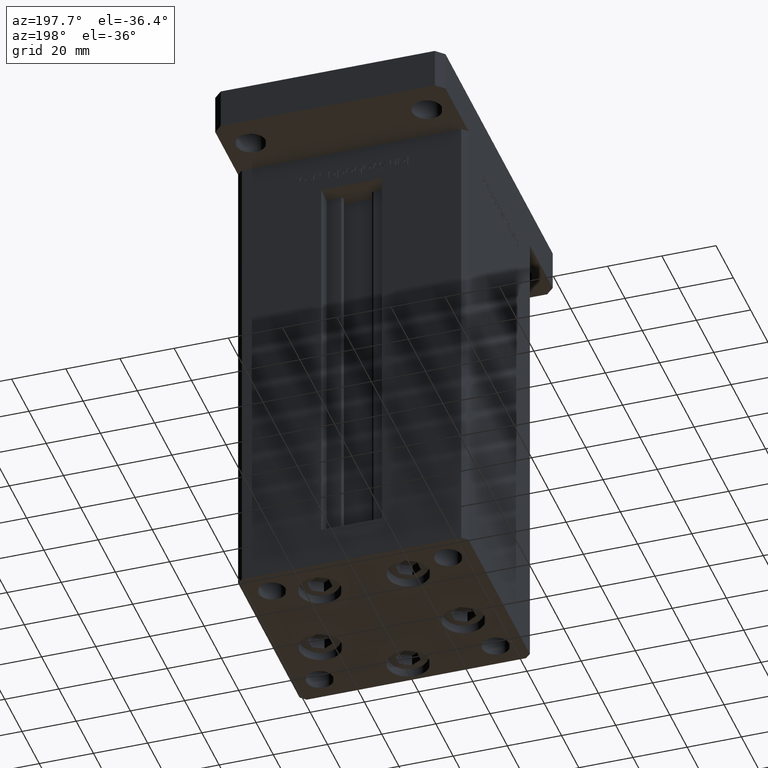
[diagram: clean part render]
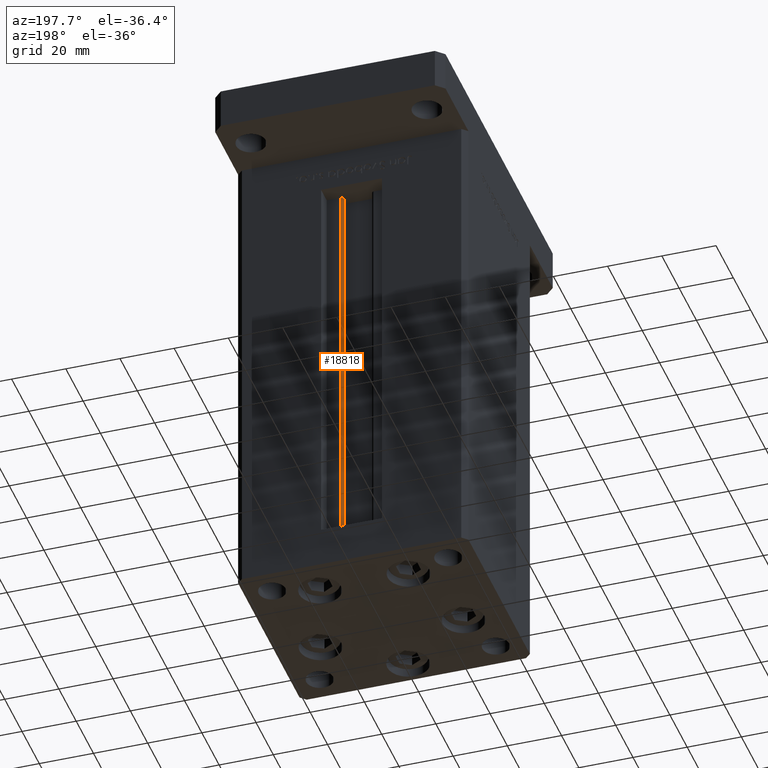
[diagram: same view with one face highlighted and labeled with its STEP entity id]
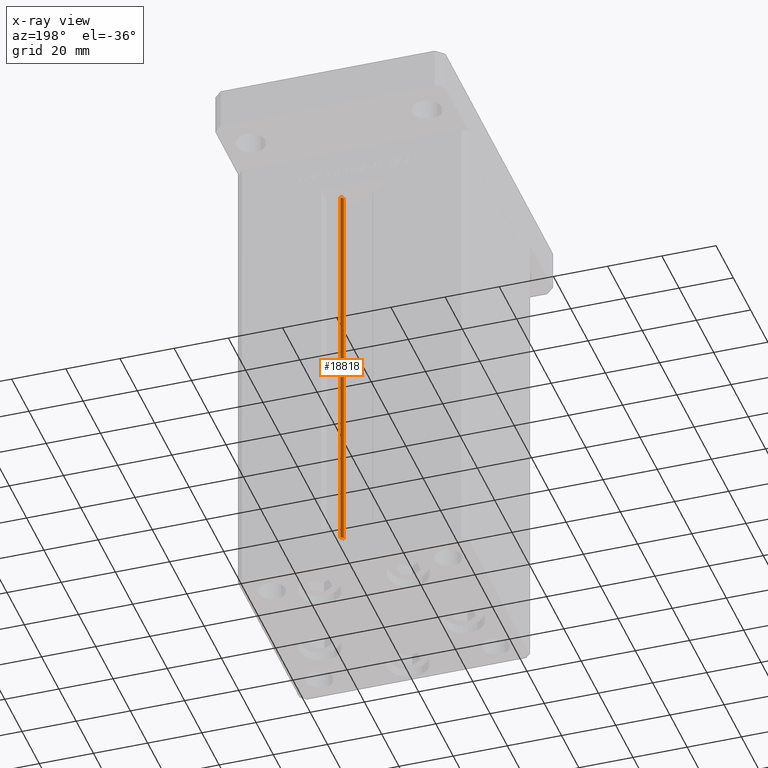
[diagram: x-ray of the same camera — body ghosted, the highlighted face saturated]
A machine part, auxiliary view. The second image highlights one B-rep face of the part: STEP entity #18818.
The next image is the same camera in x-ray: the body ghosted, the highlighted face saturated — about 0% of this face is hidden behind the body in this view.
In plain terms, the highlighted cylindrical surface (edge-blend (fillet) strip) has radius 0.9333 mm, axis along (0, 0, 1).
Its self-contained STEP definition (entity closure, byte-faithful):
#2364 = VERTEX_POINT ( 'NONE', #47356 ) ;
#4405 = DIRECTION ( 'NONE',  ( -0.000000000000000000, -0.000000000000000000, 1.000000000000000000 ) ) ;
#5122 = AXIS2_PLACEMENT_3D ( 'NONE', #43278, #6122, #35412 ) ;
#6122 = DIRECTION ( 'NONE',  ( -0.000000000000000000, -0.000000000000000000, -1.000000000000000000 ) ) ;
#6860 = CIRCLE ( 'NONE', #5122, 0.9333333333340015914 ) ;
#6907 = EDGE_CURVE ( 'NONE', #28024, #34915, #29363, .T. ) ;
#8035 = EDGE_CURVE ( 'NONE', #31649, #28024, #6860, .T. ) ;
#10369 = LINE ( 'NONE', #21802, #42649 ) ;
#10856 = DIRECTION ( 'NONE',  ( -0.000000000000000000, -0.000000000000000000, 1.000000000000000000 ) ) ;
#15739 = AXIS2_PLACEMENT_3D ( 'NONE', #39883, #10856, #49548 ) ;
#18098 = VECTOR ( 'NONE', #4405, 1000.000000000000000 ) ;
#18818 = ADVANCED_FACE ( 'NONE', ( #23625 ), #53612, .T. ) ;
#20685 = ORIENTED_EDGE ( 'NONE', *, *, #6907, .F. ) ;
#21270 = EDGE_LOOP ( 'NONE', ( #20685, #27940, #34262, #49862 ) ) ;
#21802 = CARTESIAN_POINT ( 'NONE',  ( 5.375042956467943611, 29.59999999999899245, 0.000000000000000000 ) ) ;
#22932 = CARTESIAN_POINT ( 'NONE',  ( 6.183333333333999704, 30.99999999999999289, 0.000000000000000000 ) ) ;
#23625 = FACE_OUTER_BOUND ( 'NONE', #21270, .T. ) ;
#27033 = CIRCLE ( 'NONE', #52107, 0.9333333333340015914 ) ;
#27940 = ORIENTED_EDGE ( 'NONE', *, *, #8035, .F. ) ;
#28024 = VERTEX_POINT ( 'NONE', #22932 ) ;
#29363 = LINE ( 'NONE', #45894, #18098 ) ;
#31649 = VERTEX_POINT ( 'NONE', #45362 ) ;
#32037 = EDGE_CURVE ( 'NONE', #2364, #34915, #27033, .T. ) ;
#34262 = ORIENTED_EDGE ( 'NONE', *, *, #34790, .T. ) ;
#34790 = EDGE_CURVE ( 'NONE', #31649, #2364, #10369, .T. ) ;
#34915 = VERTEX_POINT ( 'NONE', #51329 ) ;
#35412 = DIRECTION ( 'NONE',  ( 1.000000000000000000, 0.000000000000000000, 0.000000000000000000 ) ) ;
#36535 = DIRECTION ( 'NONE',  ( 0.000000000000000000, 0.000000000000000000, -1.000000000000000000 ) ) ;
#39883 = CARTESIAN_POINT ( 'NONE',  ( 6.183333333333999704, 30.06666666666599141, 0.000000000000000000 ) ) ;
#42649 = VECTOR ( 'NONE', #50531, 1000.000000000000000 ) ;
#43278 = CARTESIAN_POINT ( 'NONE',  ( 6.183333333333999704, 30.06666666666599141, 0.000000000000000000 ) ) ;
#45362 = CARTESIAN_POINT ( 'NONE',  ( 5.375042956467943611, 29.59999999999899245, 0.000000000000000000 ) ) ;
#45894 = CARTESIAN_POINT ( 'NONE',  ( 6.183333333333999704, 30.99999999999999289, 0.000000000000000000 ) ) ;
#47356 = CARTESIAN_POINT ( 'NONE',  ( 5.375042956467944499, 29.59999999999899245, 148.5000000000000000 ) ) ;
#49548 = DIRECTION ( 'NONE',  ( 1.000000000000000000, 0.000000000000000000, 0.000000000000000000 ) ) ;
#49862 = ORIENTED_EDGE ( 'NONE', *, *, #32037, .T. ) ;
#50531 = DIRECTION ( 'NONE',  ( -0.000000000000000000, -0.000000000000000000, 1.000000000000000000 ) ) ;
#51329 = CARTESIAN_POINT ( 'NONE',  ( 6.183333333333999704, 30.99999999999999289, 148.5000000000000000 ) ) ;
#52107 = AXIS2_PLACEMENT_3D ( 'NONE', #53075, #36535, #52546 ) ;
#52546 = DIRECTION ( 'NONE',  ( 1.000000000000000000, 0.000000000000000000, 0.000000000000000000 ) ) ;
#53075 = CARTESIAN_POINT ( 'NONE',  ( 6.183333333333999704, 30.06666666666599141, 148.5000000000000000 ) ) ;
#53612 = CYLINDRICAL_SURFACE ( 'NONE', #15739, 0.9333333333340015914 ) ;